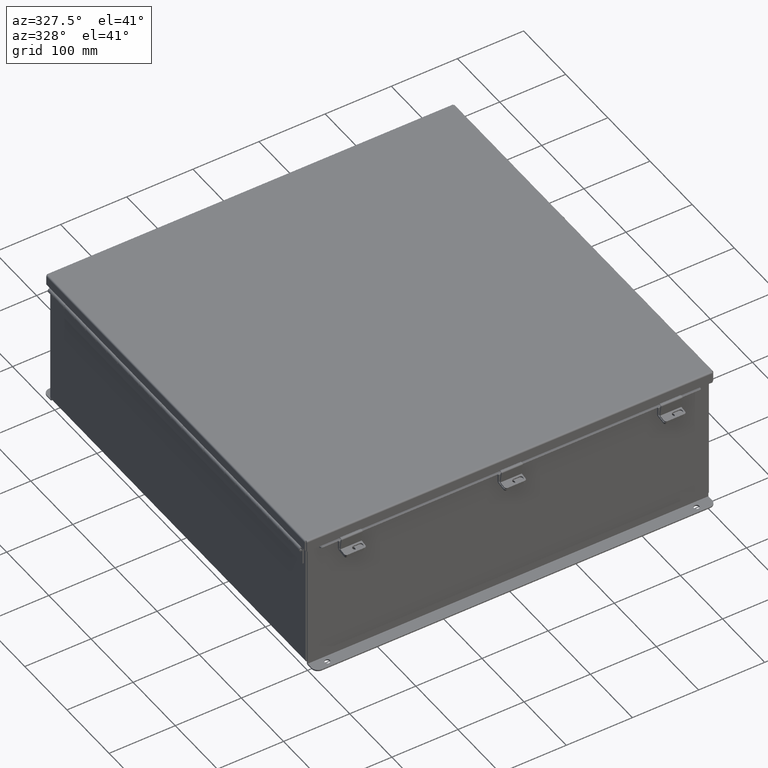
[diagram: clean part render]
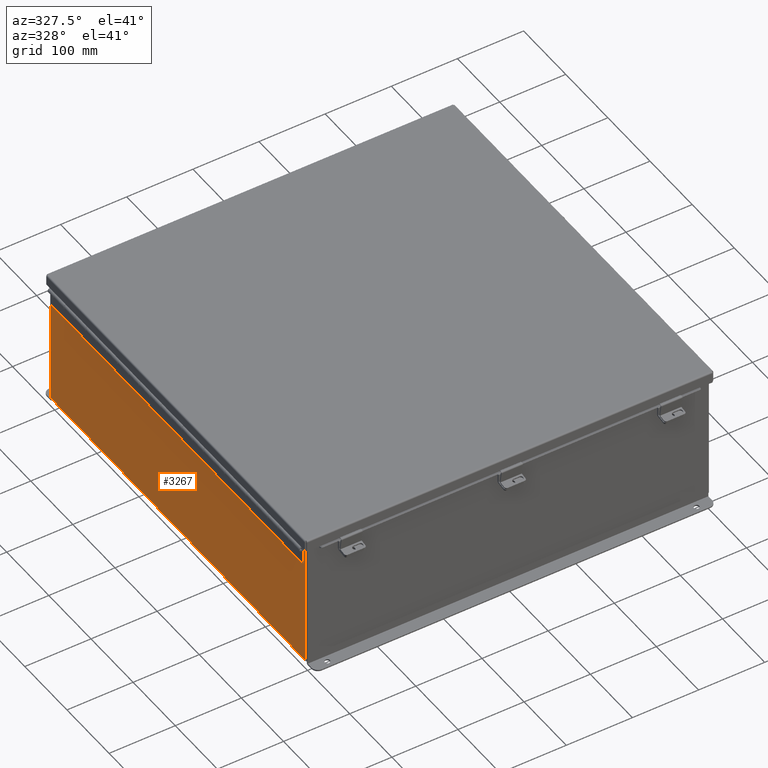
[diagram: same view with one face highlighted and labeled with its STEP entity id]
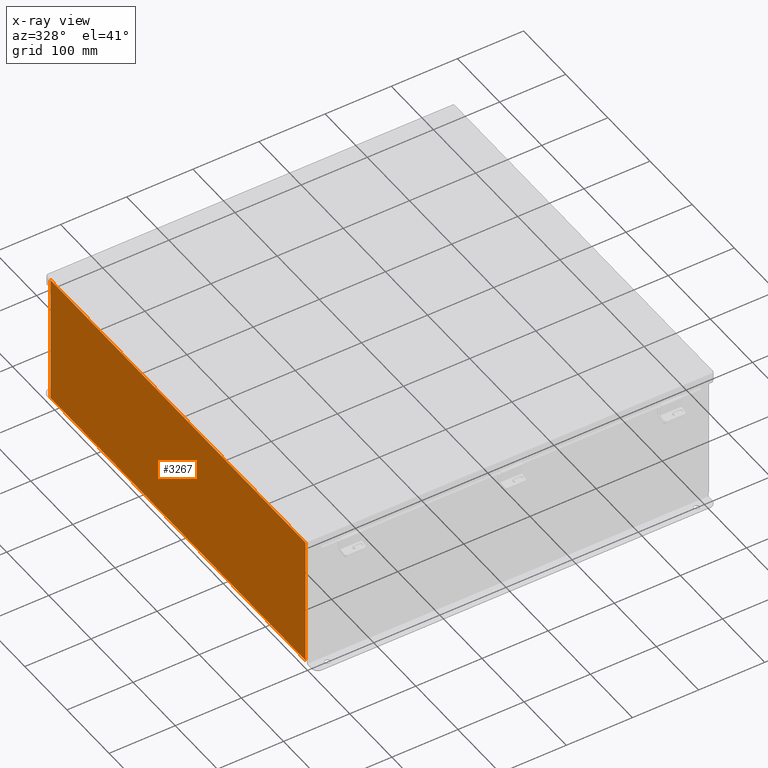
[diagram: x-ray of the same camera — body ghosted, the highlighted face saturated]
A machine part, auxiliary view. The second image highlights one B-rep face of the part: STEP entity #3267.
The next image is the same camera in x-ray: the body ghosted, the highlighted face saturated — about 0% of this face is hidden behind the body in this view.
In plain terms, the highlighted planar face has unit normal (1, 0, 0).
Its self-contained STEP definition (entity closure, byte-faithful):
#2231 = VERTEX_POINT ( 'NONE', #14314 ) ;
#3267 = ADVANCED_FACE ( 'NONE', ( #23698 ), #13490, .F. ) ;
#3921 = LINE ( 'NONE', #16245, #3949 ) ;
#3949 = VECTOR ( 'NONE', #16333, 39.37007874015748100 ) ;
#4004 = VECTOR ( 'NONE', #4292, 39.37007874015748100 ) ;
#4292 = DIRECTION ( 'NONE',  ( 0.0000000000000000000, 1.000000000000000000, 0.0000000000000000000 ) ) ;
#4643 = CARTESIAN_POINT ( 'NONE',  ( -12.00000000000000200, 11.92530000000000000, -4.369249384866780800E-014 ) ) ;
#4758 = DIRECTION ( 'NONE',  ( 3.618986973493534200E-015, 0.0000000000000000000, -1.000000000000000000 ) ) ;
#4833 = LINE ( 'NONE', #4966, #4004 ) ;
#4966 = CARTESIAN_POINT ( 'NONE',  ( -12.00000000000002700, -11.92530000000000000, 7.837600000000000100 ) ) ;
#5642 = VERTEX_POINT ( 'NONE', #6426 ) ;
#6143 = AXIS2_PLACEMENT_3D ( 'NONE', #16208, #20568, #24924 ) ;
#6306 = DIRECTION ( 'NONE',  ( -0.0000000000000000000, 1.000000000000000000, -0.0000000000000000000 ) ) ;
#6426 = CARTESIAN_POINT ( 'NONE',  ( -12.00000000000000200, 11.92530000000000000, 0.01299999999999984300 ) ) ;
#7885 = VECTOR ( 'NONE', #4758, 39.37007874015748100 ) ;
#8057 = EDGE_CURVE ( 'NONE', #15444, #2231, #3921, .T. ) ;
#8319 = LINE ( 'NONE', #4643, #7885 ) ;
#8795 = CARTESIAN_POINT ( 'NONE',  ( -12.00000000000003000, 11.92530000000000000, 7.837600000000000100 ) ) ;
#10663 = EDGE_CURVE ( 'NONE', #15444, #5642, #22830, .T. ) ;
#10887 = ORIENTED_EDGE ( 'NONE', *, *, #10663, .F. ) ;
#11473 = ORIENTED_EDGE ( 'NONE', *, *, #13197, .T. ) ;
#13197 = EDGE_CURVE ( 'NONE', #20826, #5642, #8319, .T. ) ;
#13490 = PLANE ( 'NONE',  #6143 ) ;
#14210 = ORIENTED_EDGE ( 'NONE', *, *, #20870, .T. ) ;
#14314 = CARTESIAN_POINT ( 'NONE',  ( -12.00000000000002700, -11.92529999999999800, 7.837600000000000100 ) ) ;
#15320 = CARTESIAN_POINT ( 'NONE',  ( -12.00000000000000200, 11.92530000000000000, 0.01299999999999982600 ) ) ;
#15444 = VERTEX_POINT ( 'NONE', #20057 ) ;
#16208 = CARTESIAN_POINT ( 'NONE',  ( -12.00000000000000200, 0.0000000000000000000, -4.369249384866780800E-014 ) ) ;
#16245 = CARTESIAN_POINT ( 'NONE',  ( -12.00000000000000200, -11.92530000000000000, -4.037159113136968800E-014 ) ) ;
#16333 = DIRECTION ( 'NONE',  ( -3.618986973493534200E-015, 2.783836133456565100E-016, 1.000000000000000000 ) ) ;
#16917 = ORIENTED_EDGE ( 'NONE', *, *, #8057, .T. ) ;
#17982 = EDGE_LOOP ( 'NONE', ( #14210, #11473, #10887, #16917 ) ) ;
#20057 = CARTESIAN_POINT ( 'NONE',  ( -12.00000000000000200, -11.92529999999999800, 0.01299999999999982600 ) ) ;
#20568 = DIRECTION ( 'NONE',  ( 1.000000000000000000, 0.0000000000000000000, 3.618986973493534200E-015 ) ) ;
#20826 = VERTEX_POINT ( 'NONE', #8795 ) ;
#20870 = EDGE_CURVE ( 'NONE', #2231, #20826, #4833, .T. ) ;
#22748 = VECTOR ( 'NONE', #6306, 39.37007874015748100 ) ;
#22830 = LINE ( 'NONE', #15320, #22748 ) ;
#23698 = FACE_OUTER_BOUND ( 'NONE', #17982, .T. ) ;
#24924 = DIRECTION ( 'NONE',  ( 3.618986973493534200E-015, 0.0000000000000000000, -1.000000000000000000 ) ) ;